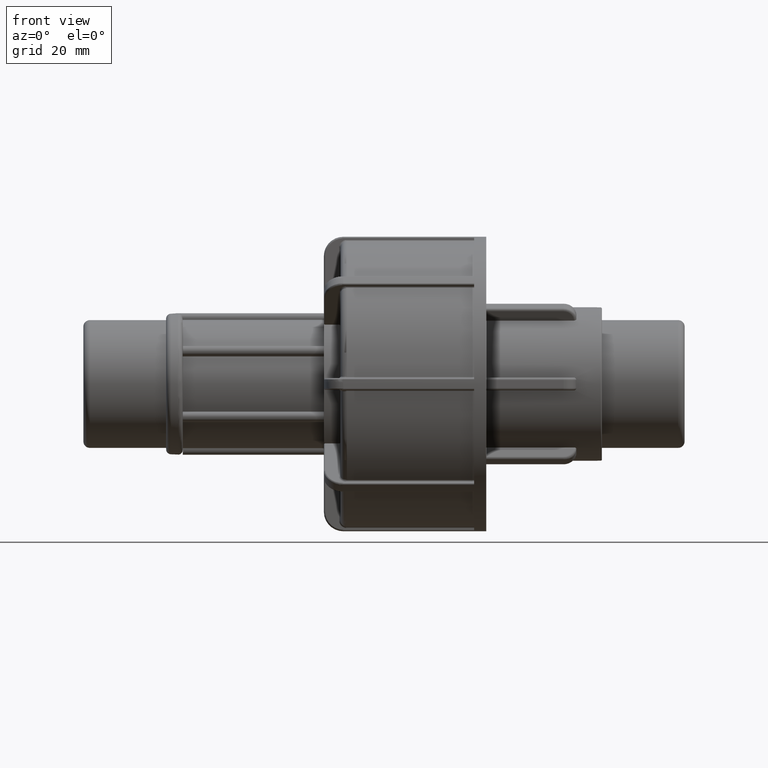
[diagram: clean part render]
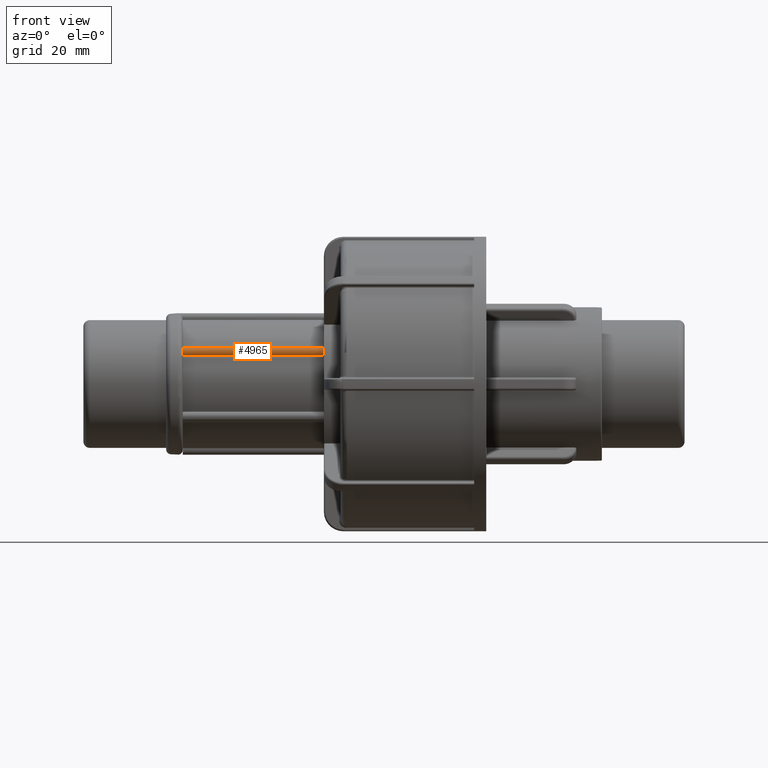
[diagram: same view with one face highlighted and labeled with its STEP entity id]
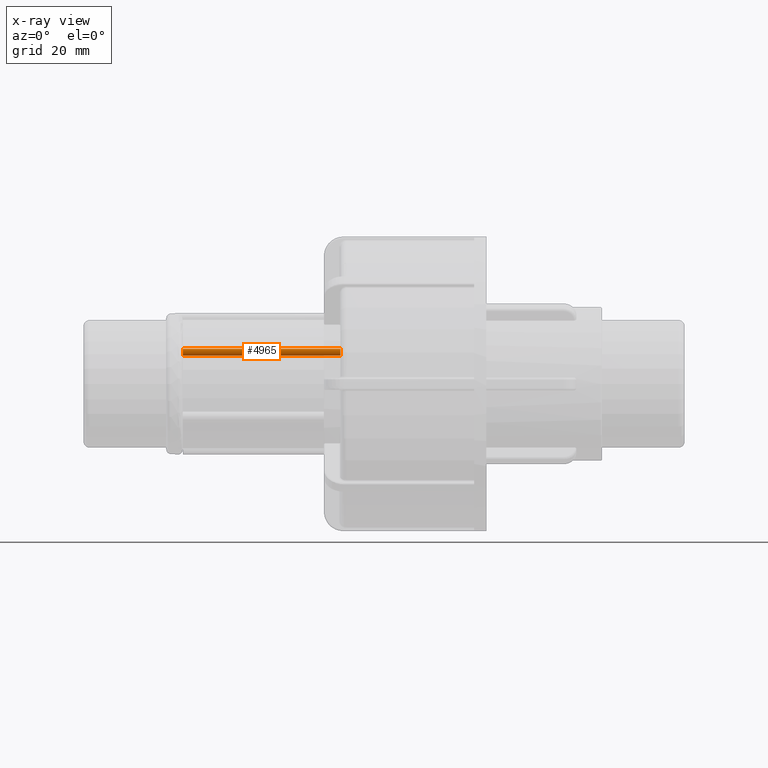
[diagram: x-ray of the same camera — body ghosted, the highlighted face saturated]
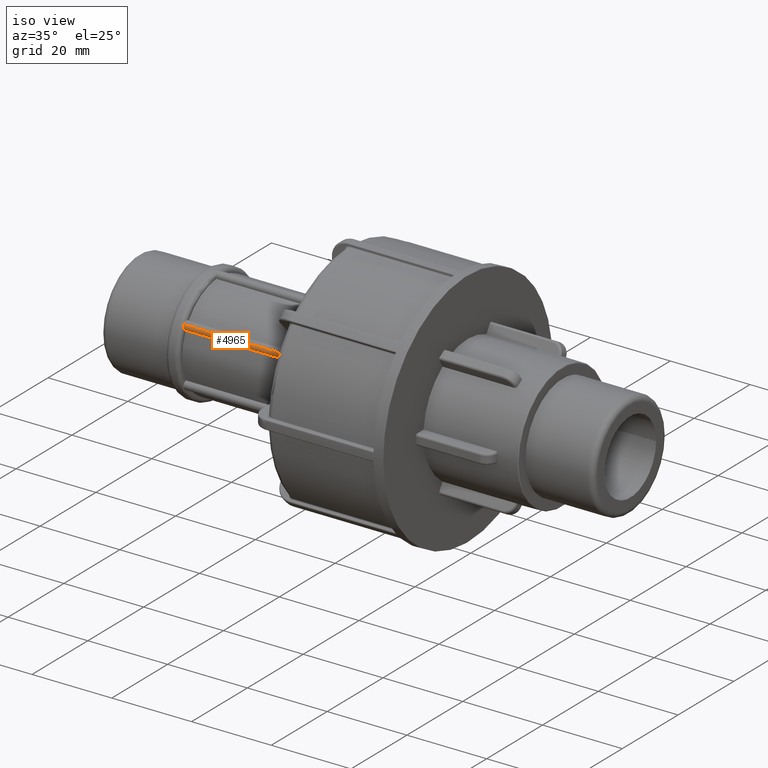
[diagram: same view with one face highlighted and labeled with its STEP entity id]
A machine part, front view. The second image highlights one B-rep face of the part: STEP entity #4965.
The next image is the same camera in x-ray: the body ghosted, the highlighted face saturated — about 0% of this face is hidden behind the body in this view.
A second angle (iso view) of the same face is appended — the face is thin or edge-on in the first view.
In plain terms, the highlighted cylindrical surface (edge-blend (fillet) strip) has radius 1 mm, axis along (1, 0, 0).
Its self-contained STEP definition (entity closure, byte-faithful):
#426=FACE_OUTER_BOUND('',#729,.T.);
#729=EDGE_LOOP('',(#4294,#4295,#4296,#4297));
#1207=LINE('',#9827,#1533);
#1208=LINE('',#9830,#1534);
#1533=VECTOR('',#6824,32.4);
#1534=VECTOR('',#6827,32.4);
#1823=CIRCLE('',#5490,1.);
#1824=CIRCLE('',#5491,1.);
#2302=VERTEX_POINT('',#9823);
#2303=VERTEX_POINT('',#9824);
#2304=VERTEX_POINT('',#9826);
#2305=VERTEX_POINT('',#9828);
#3003=EDGE_CURVE('',#2302,#2303,#1823,.T.);
#3004=EDGE_CURVE('',#2303,#2304,#1207,.T.);
#3005=EDGE_CURVE('',#2304,#2305,#1824,.F.);
#3006=EDGE_CURVE('',#2305,#2302,#1208,.T.);
#4294=ORIENTED_EDGE('',*,*,#3003,.T.);
#4295=ORIENTED_EDGE('',*,*,#3004,.T.);
#4296=ORIENTED_EDGE('',*,*,#3005,.T.);
#4297=ORIENTED_EDGE('',*,*,#3006,.T.);
#4708=CYLINDRICAL_SURFACE('',#5489,1.);
#4965=ADVANCED_FACE('',(#426),#4708,.T.);
#5489=AXIS2_PLACEMENT_3D('',#9822,#6820,#6821);
#5490=AXIS2_PLACEMENT_3D('',#9825,#6822,#6823);
#5491=AXIS2_PLACEMENT_3D('',#9829,#6825,#6826);
#6820=DIRECTION('center_axis',(1.,0.,0.));
#6821=DIRECTION('ref_axis',(0.,-0.965372843058765,-0.260874057515571));
#6822=DIRECTION('center_axis',(1.,0.,0.));
#6823=DIRECTION('ref_axis',(0.,-0.965372843058765,-0.260874057515571));
#6824=DIRECTION('',(1.,0.,0.));
#6825=DIRECTION('center_axis',(1.,0.,0.));
#6826=DIRECTION('ref_axis',(0.,-0.965372843058765,-0.260874057515571));
#6827=DIRECTION('',(-1.,0.,0.));
#9822=CARTESIAN_POINT('Origin',(-103.1,-11.7569061013072,6.72129596339468));
#9823=CARTESIAN_POINT('',(-103.1,-12.6250517682095,7.21760544450383));
#9824=CARTESIAN_POINT('',(-103.1,-12.2569061013072,5.85527055961025));
#9825=CARTESIAN_POINT('Origin',(-103.1,-11.7569061013072,6.72129596339468));
#9826=CARTESIAN_POINT('',(-70.7,-12.2569061013072,5.85527055961024));
#9827=CARTESIAN_POINT('',(-103.1,-12.2569061013072,5.85527055961025));
#9828=CARTESIAN_POINT('',(-70.7,-12.6250517682095,7.21760544450383));
#9829=CARTESIAN_POINT('Origin',(-70.7,-11.7569061013072,6.72129596339468));
#9830=CARTESIAN_POINT('',(-103.1,-12.6250517682095,7.21760544450383));